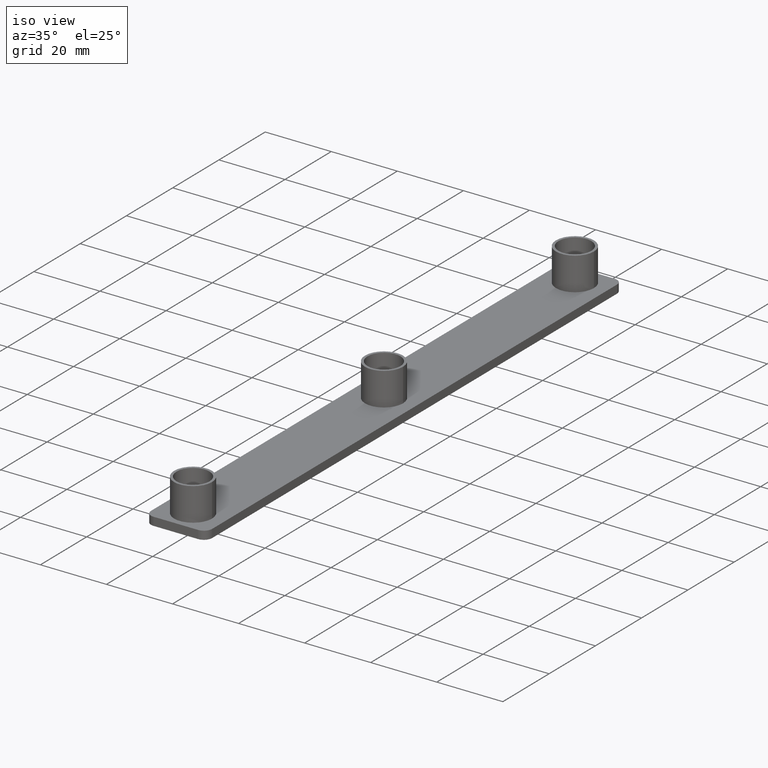
[diagram: clean part render]
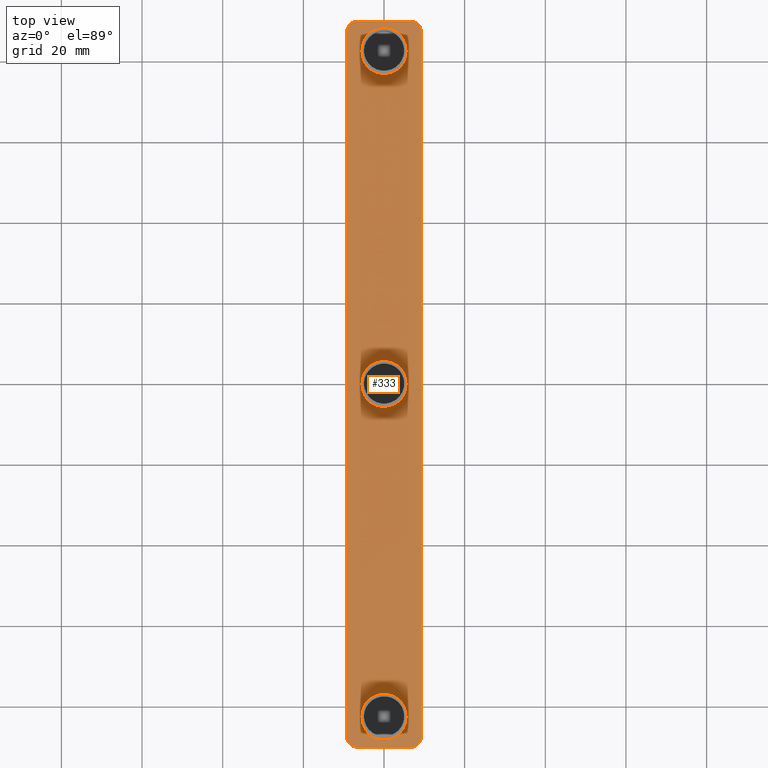
[diagram: tour spotlight — one face highlighted and labeled with its STEP entity id]
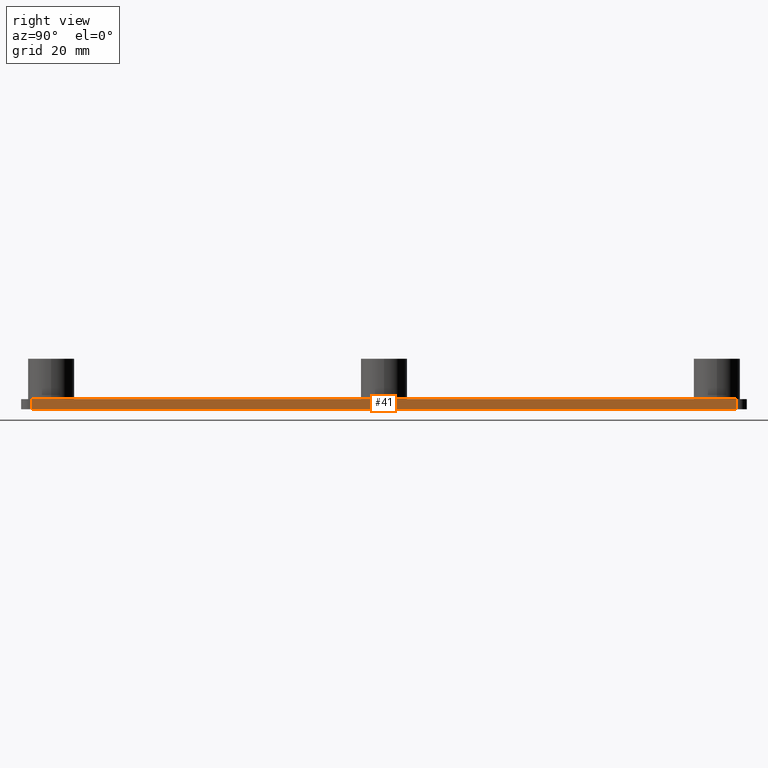
[diagram: tour spotlight — one face highlighted and labeled with its STEP entity id]
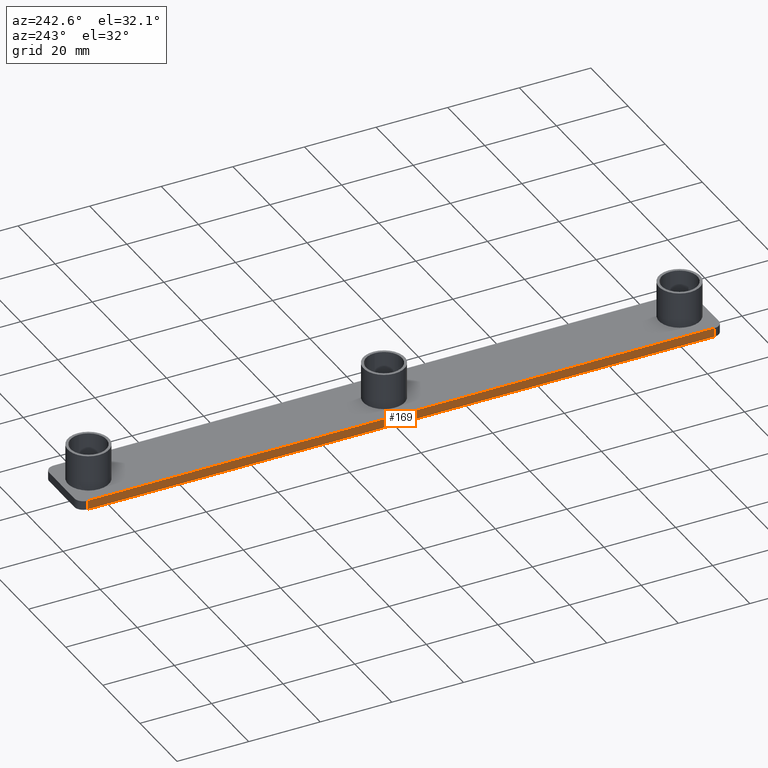
[diagram: tour spotlight — one face highlighted and labeled with its STEP entity id]
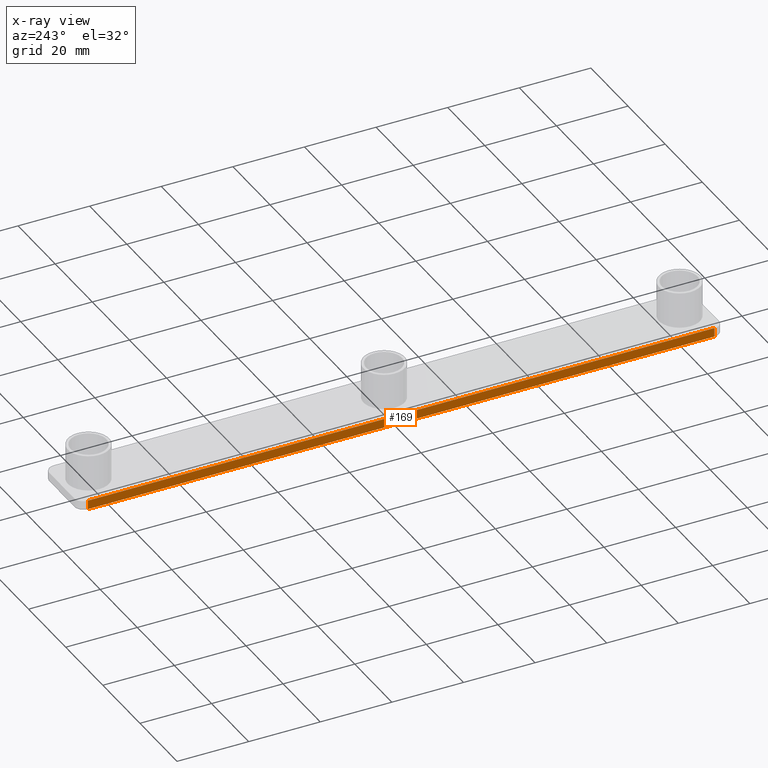
[diagram: x-ray of the same camera — body ghosted, this tour face saturated]
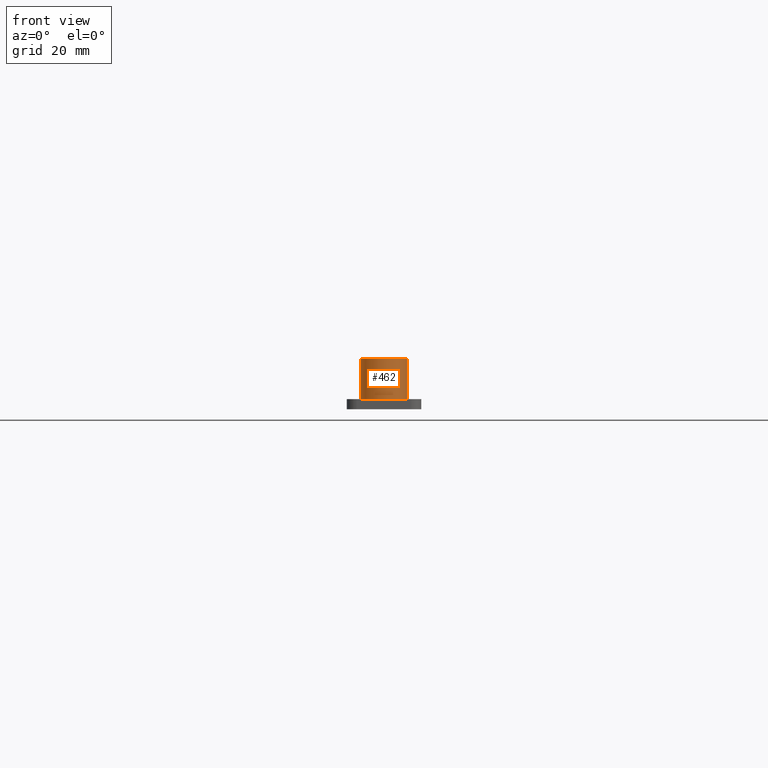
[diagram: tour spotlight — one face highlighted and labeled with its STEP entity id]
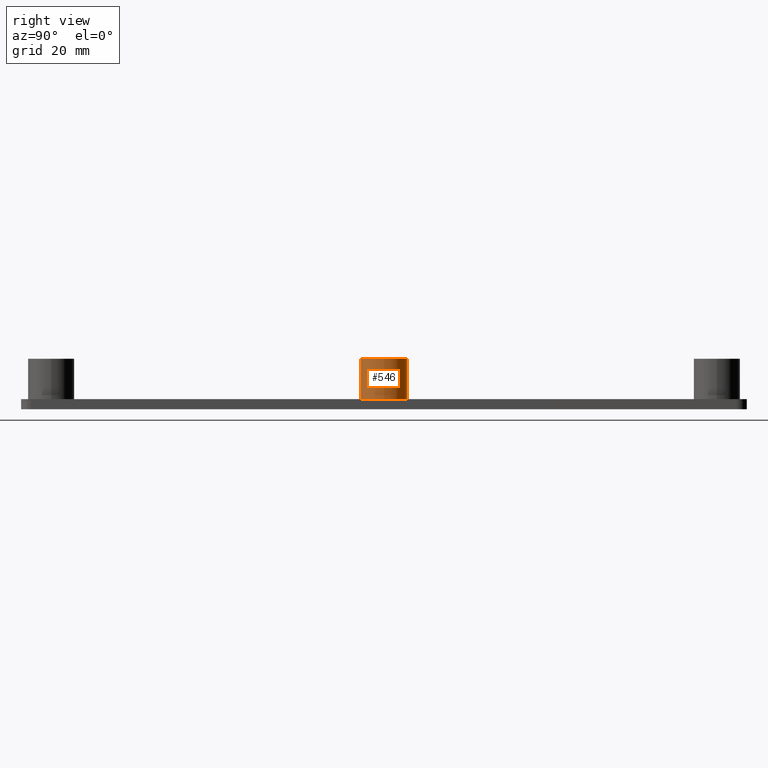
[diagram: tour spotlight — one face highlighted and labeled with its STEP entity id]
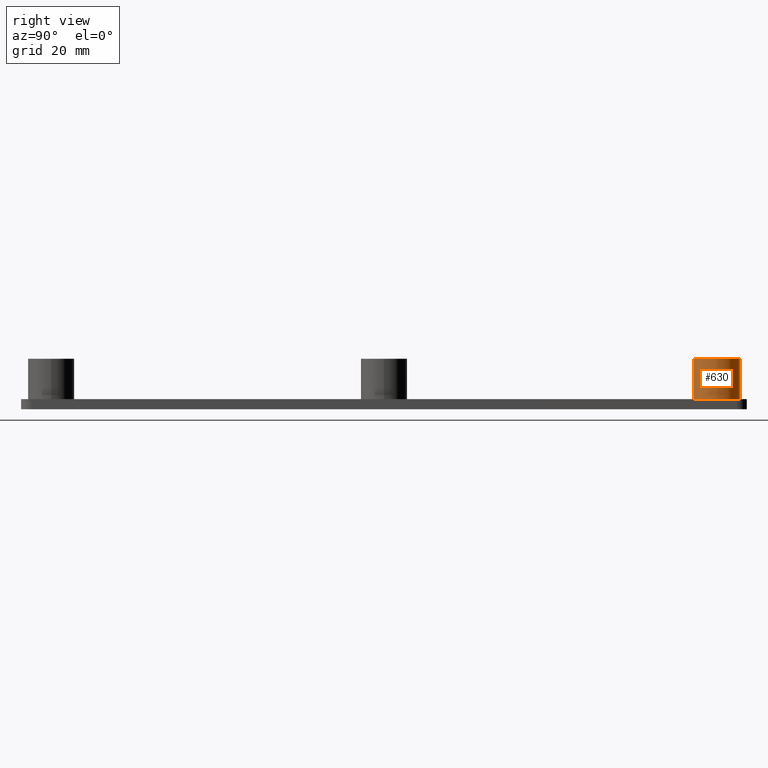
[diagram: tour spotlight — one face highlighted and labeled with its STEP entity id]
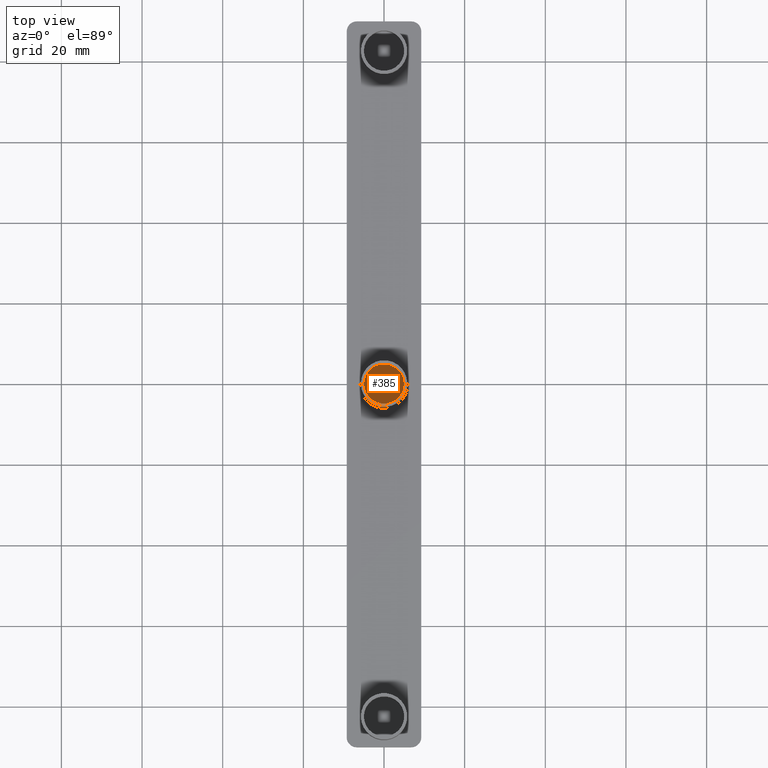
[diagram: tour spotlight — one face highlighted and labeled with its STEP entity id]
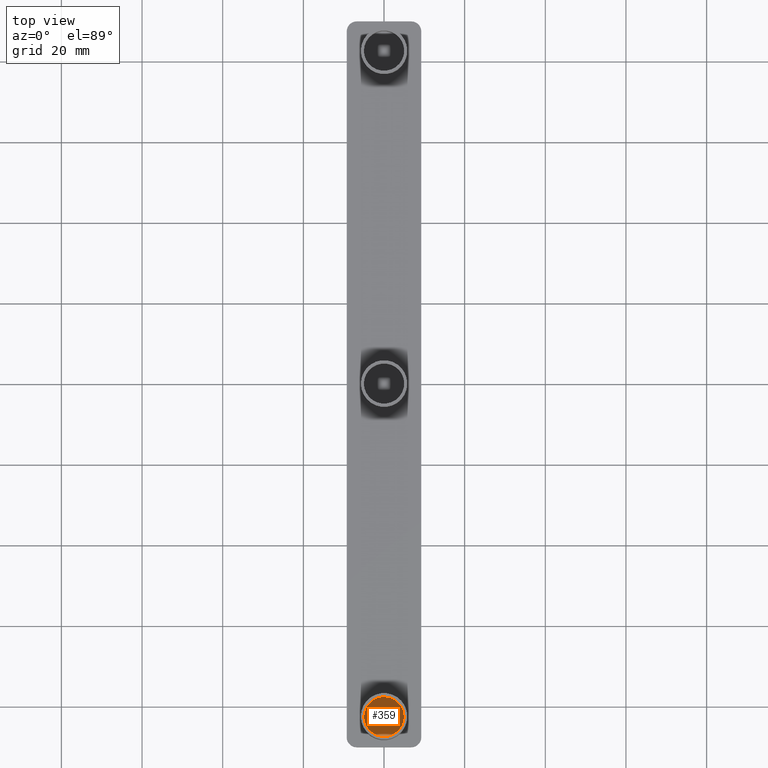
[diagram: tour spotlight — one face highlighted and labeled with its STEP entity id]
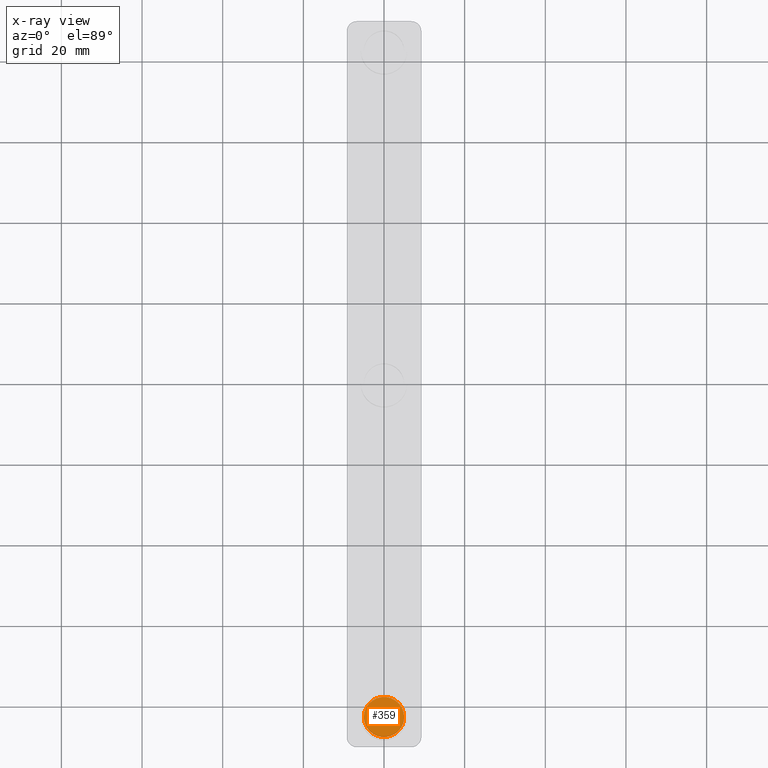
[diagram: x-ray of the same camera — body ghosted, this tour face saturated]
A machine part: a face-by-face anatomy tour. The part has 22 B-rep faces; the first image is the clean iso view, then the 8 largest visible faces are spotlighted one at a time (largest first), each with its STEP entity span.

Face 1 — top view, entity #333. In plain terms, the highlighted planar face has unit normal (0, 0, 1).
Definition (entity closure, byte-faithful):
#7=CARTESIAN_POINT('',(9.249954999963393,-87.499977499649503,0.0));
#8=VERTEX_POINT('',#7);
#25=CARTESIAN_POINT('',(9.249954999962938,87.500022499650186,0.0));
#26=VERTEX_POINT('',#25);
#33=CARTESIAN_POINT('',(9.249954999963393,-87.499977499649503,0.0));
#34=DIRECTION('',(0.0,1.0,0.0));
#35=VECTOR('',#34,174.999999999300030);
#36=LINE('',#33,#35);
#37=EDGE_CURVE('',#8,#26,#36,.T.);
#57=CARTESIAN_POINT('',(6.749954999972943,90.000022499640181,0.0));
#58=VERTEX_POINT('',#57);
#65=CARTESIAN_POINT('',(6.749954999972943,87.500022499650186,0.0));
#66=DIRECTION('',(0.0,0.0,1.0));
#67=DIRECTION('',(1.0,0.0,0.0));
#68=AXIS2_PLACEMENT_3D('',#65,#66,#67);
#69=CIRCLE('',#68,2.499999999990000);
#70=EDGE_CURVE('',#26,#58,#69,.T.);
#89=CARTESIAN_POINT('',(-6.750044999972943,90.000022499640181,0.0));
#90=VERTEX_POINT('',#89);
#97=CARTESIAN_POINT('',(6.749954999973063,90.000022499640252,0.0));
#98=DIRECTION('',(-1.0,0.0,0.0));
#99=VECTOR('',#98,13.499999999946006);
#100=LINE('',#97,#99);
#101=EDGE_CURVE('',#58,#90,#100,.T.);
#121=CARTESIAN_POINT('',(-9.250044999962938,87.500022499650186,0.0));
#122=VERTEX_POINT('',#121);
#129=CARTESIAN_POINT('',(-6.750044999972943,87.500022499650186,0.0));
#130=DIRECTION('',(0.0,0.0,1.0));
#131=DIRECTION('',(1.0,0.0,0.0));
#132=AXIS2_PLACEMENT_3D('',#129,#130,#131);
#133=CIRCLE('',#132,2.499999999990000);
#134=EDGE_CURVE('',#90,#122,#133,.T.);
#153=CARTESIAN_POINT('',(-9.250044999962938,-87.499977499649503,0.0));
#154=VERTEX_POINT('',#153);
#161=CARTESIAN_POINT('',(-9.250044999962938,87.500022499650186,0.0));
#162=DIRECTION('',(0.0,-1.0,0.0));
#163=VECTOR('',#162,174.999999999300000);
#164=LINE('',#161,#163);
#165=EDGE_CURVE('',#122,#154,#164,.T.);
#185=CARTESIAN_POINT('',(-6.750044999972943,-89.999977499639499,0.0));
#186=VERTEX_POINT('',#185);
#193=CARTESIAN_POINT('',(-6.750044999972943,-87.499977499649503,0.0));
#194=DIRECTION('',(0.0,0.0,1.0));
#195=DIRECTION('',(1.0,0.0,0.0));
#196=AXIS2_PLACEMENT_3D('',#193,#194,#195);
#197=CIRCLE('',#196,2.499999999990000);
#198=EDGE_CURVE('',#154,#186,#197,.T.);
#217=CARTESIAN_POINT('',(6.749954999973397,-89.999977499639499,0.0));
#218=VERTEX_POINT('',#217);
#225=CARTESIAN_POINT('',(-6.750044999972943,-89.999977499639499,0.0));
#226=DIRECTION('',(1.0,0.0,0.0));
#227=VECTOR('',#226,13.499999999946006);
#228=LINE('',#225,#227);
#229=EDGE_CURVE('',#186,#218,#228,.T.);
#248=CARTESIAN_POINT('',(6.749954999973397,-87.499977499649503,0.0));
#249=DIRECTION('',(0.0,0.0,1.0));
#250=DIRECTION('',(1.0,0.0,0.0));
#251=AXIS2_PLACEMENT_3D('',#248,#249,#250);
#252=CIRCLE('',#251,2.499999999990000);
#253=EDGE_CURVE('',#218,#8,#252,.T.);
#258=CARTESIAN_POINT('',(-11.100049735977336,-107.999982235150130,0.0));
#259=DIRECTION('',(0.0,0.0,1.0));
#260=DIRECTION('',(1.0,0.0,0.0));
#261=AXIS2_PLACEMENT_3D('',#258,#259,#260);
#262=PLANE('',#261);
#263=ORIENTED_EDGE('',*,*,#37,.T.);
#264=ORIENTED_EDGE('',*,*,#70,.T.);
#265=ORIENTED_EDGE('',*,*,#101,.T.);
#266=ORIENTED_EDGE('',*,*,#134,.T.);
#267=ORIENTED_EDGE('',*,*,#165,.T.);
#268=ORIENTED_EDGE('',*,*,#198,.T.);
#269=ORIENTED_EDGE('',*,*,#229,.T.);
#270=ORIENTED_EDGE('',*,*,#253,.T.);
#271=EDGE_LOOP('',(#263,#264,#265,#266,#267,#268,#269,#270));
#272=FACE_OUTER_BOUND('',#271,.T.);
#273=CARTESIAN_POINT('',(-5.749999999977001,-82.550022499669467,0.0));
#274=VERTEX_POINT('',#273);
#275=CARTESIAN_POINT('',(5.749999999976808,-82.550022499669467,0.0));
#276=VERTEX_POINT('',#275);
#277=CARTESIAN_POINT('',(0.0,-82.550022499669467,0.0));
#278=DIRECTION('',(0.0,0.0,1.0));
#279=DIRECTION('',(1.0,0.0,0.0));
#280=AXIS2_PLACEMENT_3D('',#277,#278,#279);
#281=CIRCLE('',#280,5.749999999977001);
#282=EDGE_CURVE('',#274,#276,#281,.T.);
#283=ORIENTED_EDGE('',*,*,#282,.F.);
#284=CARTESIAN_POINT('',(0.0,-82.550022499669467,0.0));
#285=DIRECTION('',(0.0,0.0,1.0));
#286=DIRECTION('',(1.0,0.0,0.0));
#287=AXIS2_PLACEMENT_3D('',#284,#285,#286);
#288=CIRCLE('',#287,5.749999999977001);
#289=EDGE_CURVE('',#276,#274,#288,.T.);
#290=ORIENTED_EDGE('',*,*,#289,.F.);
#291=EDGE_LOOP('',(#283,#290));
#292=FACE_BOUND('',#291,.T.);
#293=CARTESIAN_POINT('',(-5.749999999977001,0.0,0.0));
#294=VERTEX_POINT('',#293);
#295=CARTESIAN_POINT('',(5.749999999976808,0.0,0.0));
#296=VERTEX_POINT('',#295);
#297=CARTESIAN_POINT('',(0.0,0.0,0.0));
#298=DIRECTION('',(0.0,0.0,1.0));
#299=DIRECTION('',(1.0,0.0,0.0));
#300=AXIS2_PLACEMENT_3D('',#297,#298,#299);
#301=CIRCLE('',#300,5.749999999977001);
#302=EDGE_CURVE('',#294,#296,#301,.T.);
#303=ORIENTED_EDGE('',*,*,#302,.F.);
#304=CARTESIAN_POINT('',(0.0,0.0,0.0));
#305=DIRECTION('',(0.0,0.0,1.0));
#306=DIRECTION('',(1.0,0.0,0.0));
#307=AXIS2_PLACEMENT_3D('',#304,#305,#306);
#308=CIRCLE('',#307,5.749999999977001);
#309=EDGE_CURVE('',#296,#294,#308,.T.);
#310=ORIENTED_EDGE('',*,*,#309,.F.);
#311=EDGE_LOOP('',(#303,#310));
#312=FACE_BOUND('',#311,.T.);
#313=CARTESIAN_POINT('',(-5.749999999977001,82.550022499670376,0.0));
#314=VERTEX_POINT('',#313);
#315=CARTESIAN_POINT('',(5.749999999976808,82.550022499670376,0.0));
#316=VERTEX_POINT('',#315);
#317=CARTESIAN_POINT('',(0.0,82.550022499670376,0.0));
#318=DIRECTION('',(0.0,0.0,1.0));
#319=DIRECTION('',(1.0,0.0,0.0));
#320=AXIS2_PLACEMENT_3D('',#317,#318,#319);
#321=CIRCLE('',#320,5.749999999977001);
#322=EDGE_CURVE('',#314,#316,#321,.T.);
#323=ORIENTED_EDGE('',*,*,#322,.F.);
#324=CARTESIAN_POINT('',(0.0,82.550022499670376,0.0));
#325=DIRECTION('',(0.0,0.0,1.0));
#326=DIRECTION('',(1.0,0.0,0.0));
#327=AXIS2_PLACEMENT_3D('',#324,#325,#326);
#328=CIRCLE('',#327,5.749999999977001);
#329=EDGE_CURVE('',#316,#314,#328,.T.);
#330=ORIENTED_EDGE('',*,*,#329,.F.);
#331=EDGE_LOOP('',(#323,#330));
#332=FACE_BOUND('',#331,.T.);
#333=ADVANCED_FACE('',(#272,#292,#312,#332),#262,.T.);

Face 2 — right view, entity #41. In plain terms, the highlighted planar face has unit normal (-1, 0, 0).
Definition (entity closure, byte-faithful):
#2=CARTESIAN_POINT('',(9.249954999963393,-87.499977499649503,0.0));
#3=DIRECTION('',(-1.0,0.0,0.0));
#4=DIRECTION('',(0.0,1.0,0.0));
#5=AXIS2_PLACEMENT_3D('',#2,#3,#4);
#6=PLANE('',#5);
#7=CARTESIAN_POINT('',(9.249954999963393,-87.499977499649503,0.0));
#8=VERTEX_POINT('',#7);
#9=CARTESIAN_POINT('',(9.249954999963393,-87.499977499649503,-2.500000000000000));
#10=VERTEX_POINT('',#9);
#11=CARTESIAN_POINT('',(9.249954999963393,-87.499977499649503,0.0));
#12=DIRECTION('',(0.0,0.0,-1.0));
#13=VECTOR('',#12,2.500000000000000);
#14=LINE('',#11,#13);
#15=EDGE_CURVE('',#8,#10,#14,.T.);
#16=ORIENTED_EDGE('',*,*,#15,.T.);
#17=CARTESIAN_POINT('',(9.249954999962938,87.500022499650186,-2.500000000000000));
#18=VERTEX_POINT('',#17);
#19=CARTESIAN_POINT('',(9.249954999963393,-87.499977499649503,-2.500000000000000));
#20=DIRECTION('',(0.0,1.0,0.0));
#21=VECTOR('',#20,174.999999999300030);
#22=LINE('',#19,#21);
#23=EDGE_CURVE('',#10,#18,#22,.T.);
#24=ORIENTED_EDGE('',*,*,#23,.T.);
#25=CARTESIAN_POINT('',(9.249954999962938,87.500022499650186,0.0));
#26=VERTEX_POINT('',#25);
#27=CARTESIAN_POINT('',(9.249954999962938,87.500022499650186,0.0));
#28=DIRECTION('',(0.0,0.0,-1.0));
#29=VECTOR('',#28,2.500000000000000);
#30=LINE('',#27,#29);
#31=EDGE_CURVE('',#26,#18,#30,.T.);
#32=ORIENTED_EDGE('',*,*,#31,.F.);
#33=CARTESIAN_POINT('',(9.249954999963393,-87.499977499649503,0.0));
#34=DIRECTION('',(0.0,1.0,0.0));
#35=VECTOR('',#34,174.999999999300030);
#36=LINE('',#33,#35);
#37=EDGE_CURVE('',#8,#26,#36,.T.);
#38=ORIENTED_EDGE('',*,*,#37,.F.);
#39=EDGE_LOOP('',(#16,#24,#32,#38));
#40=FACE_OUTER_BOUND('',#39,.T.);
#41=ADVANCED_FACE('',(#40),#6,.F.);

Face 3 — auxiliary view, entity #169. An x-ray twin of the same camera follows (body ghosted, this face saturated) — the face is partly hidden behind the body. In plain terms, the highlighted planar face has unit normal (1, 0, 0).
Definition (entity closure, byte-faithful):
#112=CARTESIAN_POINT('',(-9.250044999962938,87.500022499650186,-2.500000000000000));
#113=VERTEX_POINT('',#112);
#121=CARTESIAN_POINT('',(-9.250044999962938,87.500022499650186,0.0));
#122=VERTEX_POINT('',#121);
#123=CARTESIAN_POINT('',(-9.250044999962938,87.500022499650186,0.0));
#124=DIRECTION('',(0.0,0.0,-1.0));
#125=VECTOR('',#124,2.500000000000000);
#126=LINE('',#123,#125);
#127=EDGE_CURVE('',#122,#113,#126,.T.);
#139=CARTESIAN_POINT('',(-9.250044999962938,87.500022499650186,0.0));
#140=DIRECTION('',(1.0,0.0,0.0));
#141=DIRECTION('',(0.0,-1.0,0.0));
#142=AXIS2_PLACEMENT_3D('',#139,#140,#141);
#143=PLANE('',#142);
#144=ORIENTED_EDGE('',*,*,#127,.T.);
#145=CARTESIAN_POINT('',(-9.250044999962938,-87.499977499649503,-2.500000000000000));
#146=VERTEX_POINT('',#145);
#147=CARTESIAN_POINT('',(-9.250044999962938,87.500022499650186,-2.500000000000000));
#148=DIRECTION('',(0.0,-1.0,0.0));
#149=VECTOR('',#148,174.999999999300000);
#150=LINE('',#147,#149);
#151=EDGE_CURVE('',#113,#146,#150,.T.);
#152=ORIENTED_EDGE('',*,*,#151,.T.);
#153=CARTESIAN_POINT('',(-9.250044999962938,-87.499977499649503,0.0));
#154=VERTEX_POINT('',#153);
#155=CARTESIAN_POINT('',(-9.250044999962938,-87.499977499649503,0.0));
#156=DIRECTION('',(0.0,0.0,-1.0));
#157=VECTOR('',#156,2.500000000000000);
#158=LINE('',#155,#157);
#159=EDGE_CURVE('',#154,#146,#158,.T.);
#160=ORIENTED_EDGE('',*,*,#159,.F.);
#161=CARTESIAN_POINT('',(-9.250044999962938,87.500022499650186,0.0));
#162=DIRECTION('',(0.0,-1.0,0.0));
#163=VECTOR('',#162,174.999999999300000);
#164=LINE('',#161,#163);
#165=EDGE_CURVE('',#122,#154,#164,.T.);
#166=ORIENTED_EDGE('',*,*,#165,.F.);
#167=EDGE_LOOP('',(#144,#152,#160,#166));
#168=FACE_OUTER_BOUND('',#167,.T.);
#169=ADVANCED_FACE('',(#168),#143,.F.);

Face 4 — front view, entity #462. In plain terms, the highlighted cylindrical surface (bore or boss wall) has radius 5.75 mm, axis along (0, 0, 1).
Definition (entity closure, byte-faithful):
#273=CARTESIAN_POINT('',(-5.749999999977001,-82.550022499669467,0.0));
#274=VERTEX_POINT('',#273);
#275=CARTESIAN_POINT('',(5.749999999976808,-82.550022499669467,0.0));
#276=VERTEX_POINT('',#275);
#277=CARTESIAN_POINT('',(0.0,-82.550022499669467,0.0));
#278=DIRECTION('',(0.0,0.0,1.0));
#279=DIRECTION('',(1.0,0.0,0.0));
#280=AXIS2_PLACEMENT_3D('',#277,#278,#279);
#281=CIRCLE('',#280,5.749999999977001);
#282=EDGE_CURVE('',#274,#276,#281,.T.);
#284=CARTESIAN_POINT('',(0.0,-82.550022499669467,0.0));
#285=DIRECTION('',(0.0,0.0,1.0));
#286=DIRECTION('',(1.0,0.0,0.0));
#287=AXIS2_PLACEMENT_3D('',#284,#285,#286);
#288=CIRCLE('',#287,5.749999999977001);
#289=EDGE_CURVE('',#276,#274,#288,.T.);
#428=CARTESIAN_POINT('',(0.0,-82.550022499669467,0.0));
#429=DIRECTION('',(0.0,0.0,1.0));
#430=DIRECTION('',(1.0,0.0,0.0));
#431=AXIS2_PLACEMENT_3D('',#428,#429,#430);
#432=CYLINDRICAL_SURFACE('',#431,5.749999999977001);
#433=CARTESIAN_POINT('',(-5.749999999977001,-82.550022499669467,10.0));
#434=VERTEX_POINT('',#433);
#435=CARTESIAN_POINT('',(5.749999999976808,-82.550022499669467,10.0));
#436=VERTEX_POINT('',#435);
#437=CARTESIAN_POINT('',(0.0,-82.550022499669467,10.0));
#438=DIRECTION('',(0.0,0.0,1.0));
#439=DIRECTION('',(1.0,0.0,0.0));
#440=AXIS2_PLACEMENT_3D('',#437,#438,#439);
#441=CIRCLE('',#440,5.749999999977001);
#442=EDGE_CURVE('',#434,#436,#441,.T.);
#443=ORIENTED_EDGE('',*,*,#442,.F.);
#444=CARTESIAN_POINT('',(0.0,-82.550022499669467,10.0));
#445=DIRECTION('',(0.0,0.0,1.0));
#446=DIRECTION('',(1.0,0.0,0.0));
#447=AXIS2_PLACEMENT_3D('',#444,#445,#446);
#448=CIRCLE('',#447,5.749999999977001);
#449=EDGE_CURVE('',#436,#434,#448,.T.);
#450=ORIENTED_EDGE('',*,*,#449,.F.);
#451=CARTESIAN_POINT('',(5.749999999976808,-82.550022499669467,0.0));
#452=DIRECTION('',(0.0,0.0,1.0));
#453=VECTOR('',#452,10.0);
#454=LINE('',#451,#453);
#455=EDGE_CURVE('',#276,#436,#454,.T.);
#456=ORIENTED_EDGE('',*,*,#455,.F.);
#457=ORIENTED_EDGE('',*,*,#289,.T.);
#458=ORIENTED_EDGE('',*,*,#282,.T.);
#459=ORIENTED_EDGE('',*,*,#455,.T.);
#460=EDGE_LOOP('',(#443,#450,#456,#457,#458,#459));
#461=FACE_OUTER_BOUND('',#460,.T.);
#462=ADVANCED_FACE('',(#461),#432,.T.);

Face 5 — right view, entity #546. In plain terms, the highlighted cylindrical surface (bore or boss wall) has radius 5.75 mm, axis along (0, 0, 1).
Definition (entity closure, byte-faithful):
#293=CARTESIAN_POINT('',(-5.749999999977001,0.0,0.0));
#294=VERTEX_POINT('',#293);
#295=CARTESIAN_POINT('',(5.749999999976808,0.0,0.0));
#296=VERTEX_POINT('',#295);
#297=CARTESIAN_POINT('',(0.0,0.0,0.0));
#298=DIRECTION('',(0.0,0.0,1.0));
#299=DIRECTION('',(1.0,0.0,0.0));
#300=AXIS2_PLACEMENT_3D('',#297,#298,#299);
#301=CIRCLE('',#300,5.749999999977001);
#302=EDGE_CURVE('',#294,#296,#301,.T.);
#304=CARTESIAN_POINT('',(0.0,0.0,0.0));
#305=DIRECTION('',(0.0,0.0,1.0));
#306=DIRECTION('',(1.0,0.0,0.0));
#307=AXIS2_PLACEMENT_3D('',#304,#305,#306);
#308=CIRCLE('',#307,5.749999999977001);
#309=EDGE_CURVE('',#296,#294,#308,.T.);
#512=CARTESIAN_POINT('',(0.0,0.0,0.0));
#513=DIRECTION('',(0.0,0.0,1.0));
#514=DIRECTION('',(1.0,0.0,0.0));
#515=AXIS2_PLACEMENT_3D('',#512,#513,#514);
#516=CYLINDRICAL_SURFACE('',#515,5.749999999977001);
#517=CARTESIAN_POINT('',(-5.749999999977001,0.0,10.0));
#518=VERTEX_POINT('',#517);
#519=CARTESIAN_POINT('',(5.749999999976808,0.0,10.0));
#520=VERTEX_POINT('',#519);
#521=CARTESIAN_POINT('',(0.0,0.0,10.0));
#522=DIRECTION('',(0.0,0.0,1.0));
#523=DIRECTION('',(1.0,0.0,0.0));
#524=AXIS2_PLACEMENT_3D('',#521,#522,#523);
#525=CIRCLE('',#524,5.749999999977001);
#526=EDGE_CURVE('',#518,#520,#525,.T.);
#527=ORIENTED_EDGE('',*,*,#526,.F.);
#528=CARTESIAN_POINT('',(0.0,0.0,10.0));
#529=DIRECTION('',(0.0,0.0,1.0));
#530=DIRECTION('',(1.0,0.0,0.0));
#531=AXIS2_PLACEMENT_3D('',#528,#529,#530);
#532=CIRCLE('',#531,5.749999999977001);
#533=EDGE_CURVE('',#520,#518,#532,.T.);
#534=ORIENTED_EDGE('',*,*,#533,.F.);
#535=CARTESIAN_POINT('',(5.749999999976808,0.0,0.0));
#536=DIRECTION('',(0.0,0.0,1.0));
#537=VECTOR('',#536,10.0);
#538=LINE('',#535,#537);
#539=EDGE_CURVE('',#296,#520,#538,.T.);
#540=ORIENTED_EDGE('',*,*,#539,.F.);
#541=ORIENTED_EDGE('',*,*,#309,.T.);
#542=ORIENTED_EDGE('',*,*,#302,.T.);
#543=ORIENTED_EDGE('',*,*,#539,.T.);
#544=EDGE_LOOP('',(#527,#534,#540,#541,#542,#543));
#545=FACE_OUTER_BOUND('',#544,.T.);
#546=ADVANCED_FACE('',(#545),#516,.T.);

Face 6 — right view, entity #630. In plain terms, the highlighted cylindrical surface (bore or boss wall) has radius 5.75 mm, axis along (0, 0, 1).
Definition (entity closure, byte-faithful):
#313=CARTESIAN_POINT('',(-5.749999999977001,82.550022499670376,0.0));
#314=VERTEX_POINT('',#313);
#315=CARTESIAN_POINT('',(5.749999999976808,82.550022499670376,0.0));
#316=VERTEX_POINT('',#315);
#317=CARTESIAN_POINT('',(0.0,82.550022499670376,0.0));
#318=DIRECTION('',(0.0,0.0,1.0));
#319=DIRECTION('',(1.0,0.0,0.0));
#320=AXIS2_PLACEMENT_3D('',#317,#318,#319);
#321=CIRCLE('',#320,5.749999999977001);
#322=EDGE_CURVE('',#314,#316,#321,.T.);
#324=CARTESIAN_POINT('',(0.0,82.550022499670376,0.0));
#325=DIRECTION('',(0.0,0.0,1.0));
#326=DIRECTION('',(1.0,0.0,0.0));
#327=AXIS2_PLACEMENT_3D('',#324,#325,#326);
#328=CIRCLE('',#327,5.749999999977001);
#329=EDGE_CURVE('',#316,#314,#328,.T.);
#596=CARTESIAN_POINT('',(0.0,82.550022499670376,0.0));
#597=DIRECTION('',(0.0,0.0,1.0));
#598=DIRECTION('',(1.0,0.0,0.0));
#599=AXIS2_PLACEMENT_3D('',#596,#597,#598);
#600=CYLINDRICAL_SURFACE('',#599,5.749999999977001);
#601=CARTESIAN_POINT('',(-5.749999999977001,82.550022499670376,10.0));
#602=VERTEX_POINT('',#601);
#603=CARTESIAN_POINT('',(5.749999999976808,82.550022499670376,10.0));
#604=VERTEX_POINT('',#603);
#605=CARTESIAN_POINT('',(0.0,82.550022499670376,10.0));
#606=DIRECTION('',(0.0,0.0,1.0));
#607=DIRECTION('',(1.0,0.0,0.0));
#608=AXIS2_PLACEMENT_3D('',#605,#606,#607);
#609=CIRCLE('',#608,5.749999999977001);
#610=EDGE_CURVE('',#602,#604,#609,.T.);
#611=ORIENTED_EDGE('',*,*,#610,.F.);
#612=CARTESIAN_POINT('',(0.0,82.550022499670376,10.0));
#613=DIRECTION('',(0.0,0.0,1.0));
#614=DIRECTION('',(1.0,0.0,0.0));
#615=AXIS2_PLACEMENT_3D('',#612,#613,#614);
#616=CIRCLE('',#615,5.749999999977001);
#617=EDGE_CURVE('',#604,#602,#616,.T.);
#618=ORIENTED_EDGE('',*,*,#617,.F.);
#619=CARTESIAN_POINT('',(5.749999999976808,82.550022499670376,0.0));
#620=DIRECTION('',(0.0,0.0,1.0));
#621=VECTOR('',#620,10.0);
#622=LINE('',#619,#621);
#623=EDGE_CURVE('',#316,#604,#622,.T.);
#624=ORIENTED_EDGE('',*,*,#623,.F.);
#625=ORIENTED_EDGE('',*,*,#329,.T.);
#626=ORIENTED_EDGE('',*,*,#322,.T.);
#627=ORIENTED_EDGE('',*,*,#623,.T.);
#628=EDGE_LOOP('',(#611,#618,#624,#625,#626,#627));
#629=FACE_OUTER_BOUND('',#628,.T.);
#630=ADVANCED_FACE('',(#629),#600,.T.);

Face 7 — top view, entity #385. In plain terms, the highlighted planar face has unit normal (0, 0, 1).
Definition (entity closure, byte-faithful):
#360=CARTESIAN_POINT('',(-11.100049735977336,-107.999982235150130,0.0));
#361=DIRECTION('',(0.0,0.0,1.0));
#362=DIRECTION('',(1.0,0.0,0.0));
#363=AXIS2_PLACEMENT_3D('',#360,#361,#362);
#364=PLANE('',#363);
#365=CARTESIAN_POINT('',(-4.999999999980001,0.0,0.0));
#366=VERTEX_POINT('',#365);
#367=CARTESIAN_POINT('',(4.999999999979991,0.0,0.0));
#368=VERTEX_POINT('',#367);
#369=CARTESIAN_POINT('',(0.0,0.0,0.0));
#370=DIRECTION('',(0.0,0.0,-1.0));
#371=DIRECTION('',(1.0,0.0,0.0));
#372=AXIS2_PLACEMENT_3D('',#369,#370,#371);
#373=CIRCLE('',#372,4.999999999980001);
#374=EDGE_CURVE('',#366,#368,#373,.T.);
#375=ORIENTED_EDGE('',*,*,#374,.F.);
#376=CARTESIAN_POINT('',(0.0,0.0,0.0));
#377=DIRECTION('',(0.0,0.0,-1.0));
#378=DIRECTION('',(1.0,0.0,0.0));
#379=AXIS2_PLACEMENT_3D('',#376,#377,#378);
#380=CIRCLE('',#379,4.999999999980001);
#381=EDGE_CURVE('',#368,#366,#380,.T.);
#382=ORIENTED_EDGE('',*,*,#381,.F.);
#383=EDGE_LOOP('',(#375,#382));
#384=FACE_OUTER_BOUND('',#383,.T.);
#385=ADVANCED_FACE('',(#384),#364,.T.);

Face 8 — top view, entity #359. An x-ray twin of the same camera follows (body ghosted, this face saturated) — the face is partly hidden behind the body. In plain terms, the highlighted planar face has unit normal (0, 0, 1).
Definition (entity closure, byte-faithful):
#334=CARTESIAN_POINT('',(-11.100049735977336,-107.999982235150130,0.0));
#335=DIRECTION('',(0.0,0.0,1.0));
#336=DIRECTION('',(1.0,0.0,0.0));
#337=AXIS2_PLACEMENT_3D('',#334,#335,#336);
#338=PLANE('',#337);
#339=CARTESIAN_POINT('',(-4.999999999980001,-82.550022499669467,0.0));
#340=VERTEX_POINT('',#339);
#341=CARTESIAN_POINT('',(4.999999999979991,-82.550022499669467,0.0));
#342=VERTEX_POINT('',#341);
#343=CARTESIAN_POINT('',(0.0,-82.550022499669467,0.0));
#344=DIRECTION('',(0.0,0.0,-1.0));
#345=DIRECTION('',(1.0,0.0,0.0));
#346=AXIS2_PLACEMENT_3D('',#343,#344,#345);
#347=CIRCLE('',#346,4.999999999980001);
#348=EDGE_CURVE('',#340,#342,#347,.T.);
#349=ORIENTED_EDGE('',*,*,#348,.F.);
#350=CARTESIAN_POINT('',(0.0,-82.550022499669467,0.0));
#351=DIRECTION('',(0.0,0.0,-1.0));
#352=DIRECTION('',(1.0,0.0,0.0));
#353=AXIS2_PLACEMENT_3D('',#350,#351,#352);
#354=CIRCLE('',#353,4.999999999980001);
#355=EDGE_CURVE('',#342,#340,#354,.T.);
#356=ORIENTED_EDGE('',*,*,#355,.F.);
#357=EDGE_LOOP('',(#349,#356));
#358=FACE_OUTER_BOUND('',#357,.T.);
#359=ADVANCED_FACE('',(#358),#338,.T.);